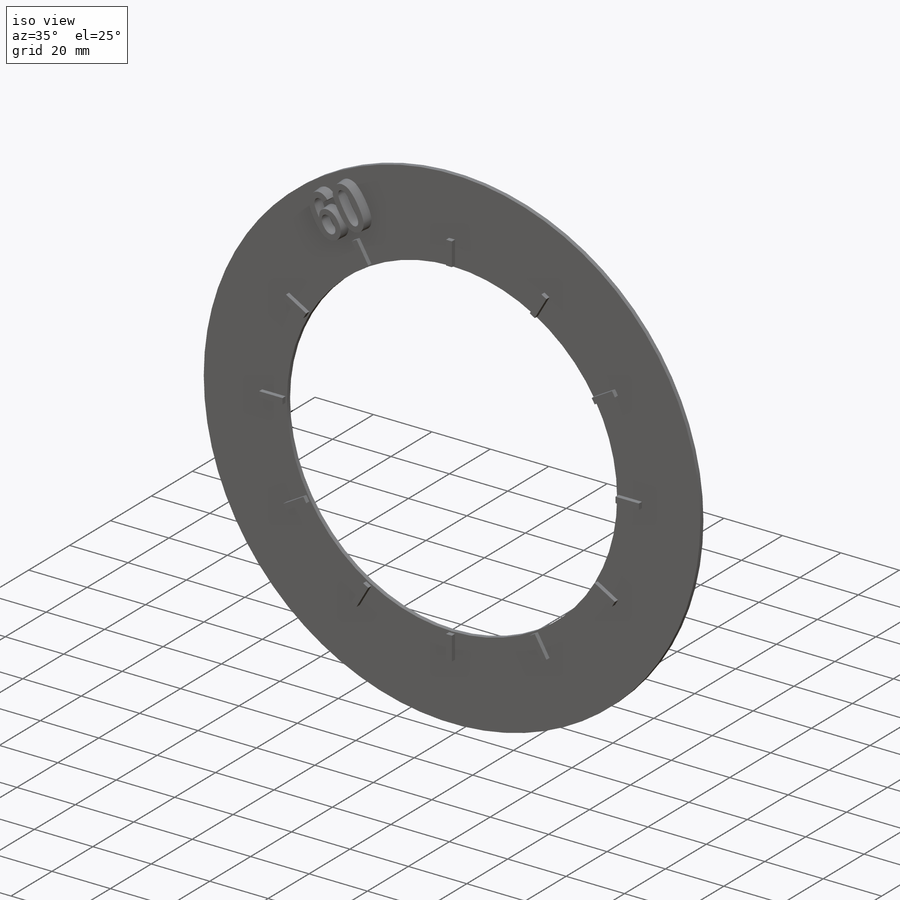
[diagram: iso view]
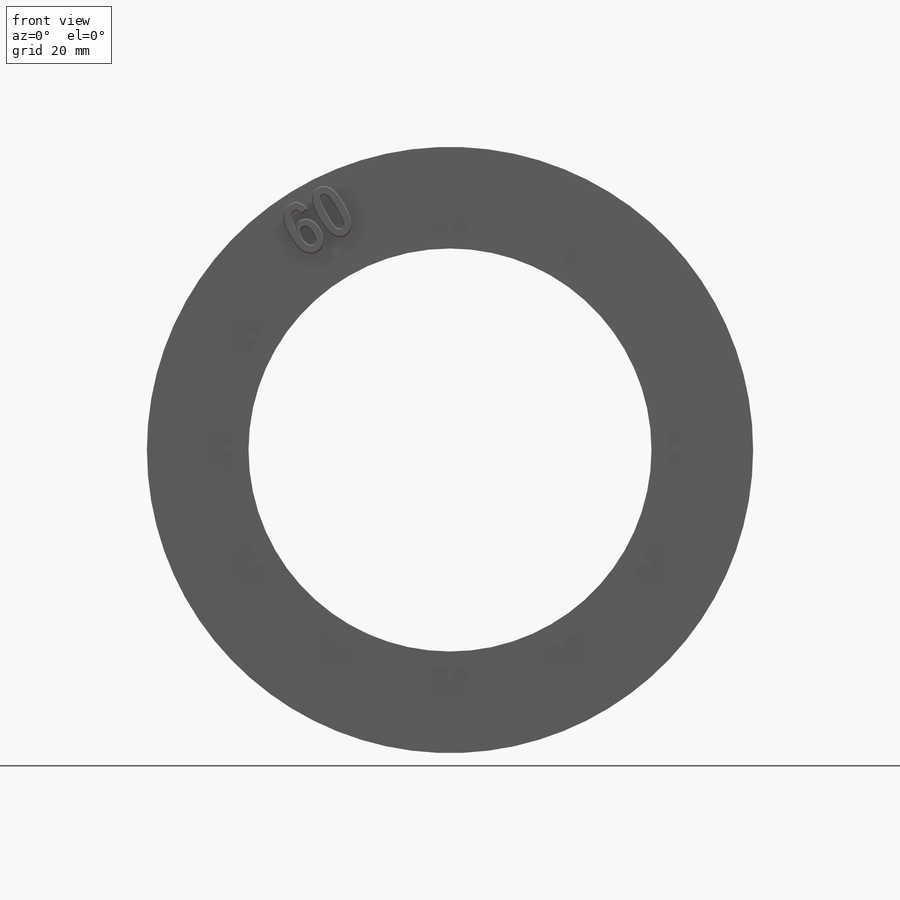
[diagram: front view]
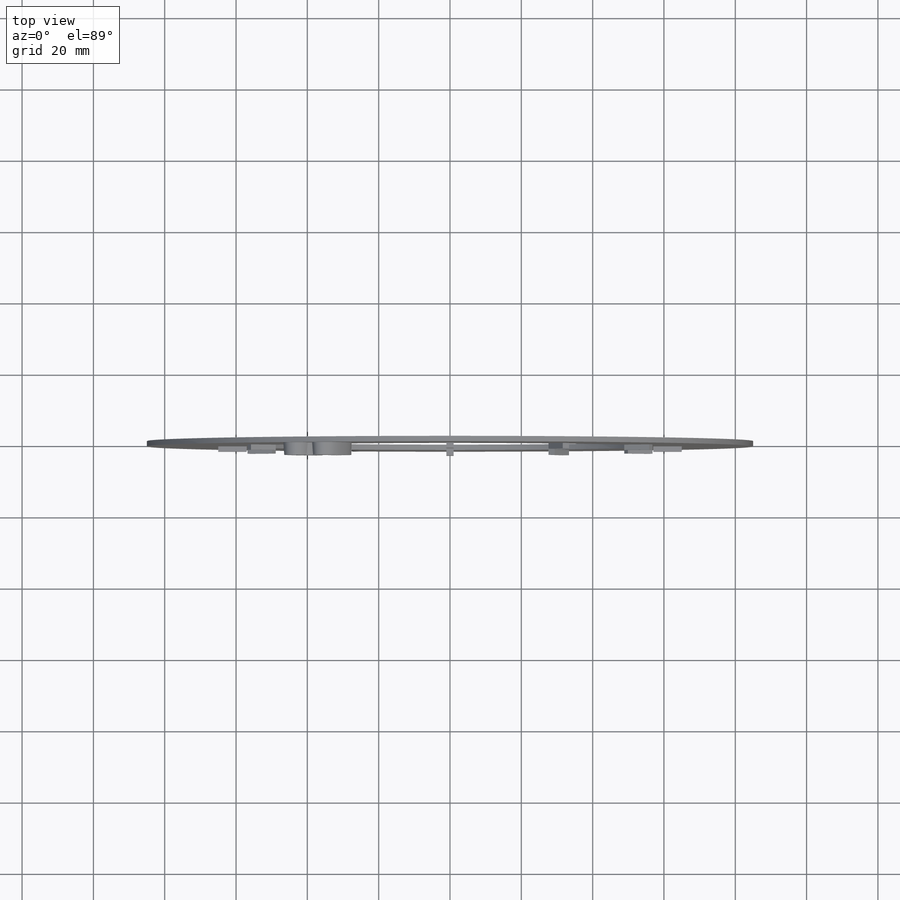
[diagram: top view]
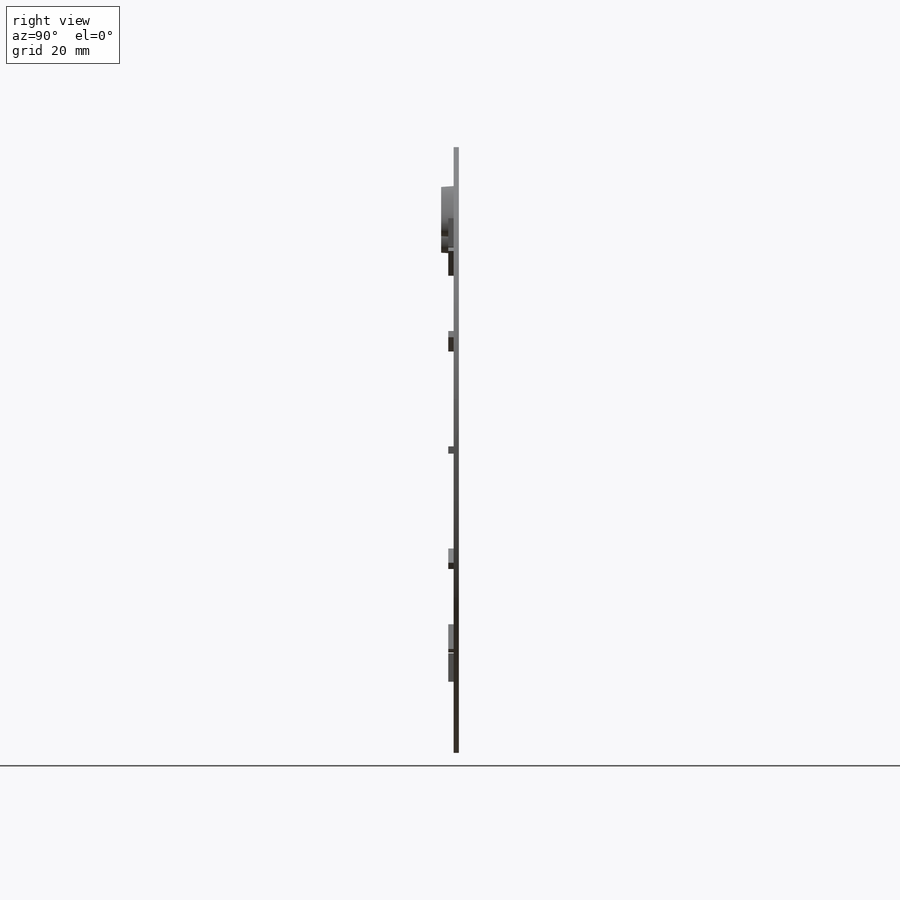
[diagram: right view]
SOLIDWORKS PART (.sldprt)
format: sldprt  version: not decoded by parser v0  size: 430,592 bytes
history: native  units: mm
features: sketch x3, extrude x3, material x1, pattern_circular x1 (+11 scaffold rows collapsed)
feature tree (19):
  scaffold x11  (default folders/planes/origin — collapsed)
  material  "Material <not specified>"
  sketch  "Sketch1"  dims[D1=113.0mm D2=170.0mm]
  extrude  "Boss-Extrude1"  Depth=1.5mm
  sketch  "Sketch2"  dims[D1=2.0mm D2=8.0mm D3=1.0mm D4=57.0mm]
  extrude  "Boss-Extrude2"  Depth=1.5mm
  pattern_circular  "CirPattern1"  Count=12 Angle=360deg
  sketch  "Sketch4"  dims[c1.D1=~109.807031mm c2.D1=30.0deg c2.D2=20.0mm c2.D3=20.0mm c3.D3=~0.496258deg c4.D3=67.0mm]
  extrude  "Boss-Extrude3"  Depth=3.5mm
decode coverage: 7 of 7 modeling features carry decoded parameters
note: ~ marks probable driven/reference dimensions
note: suppression state not decoded; provenance and decode notes live in map.json
